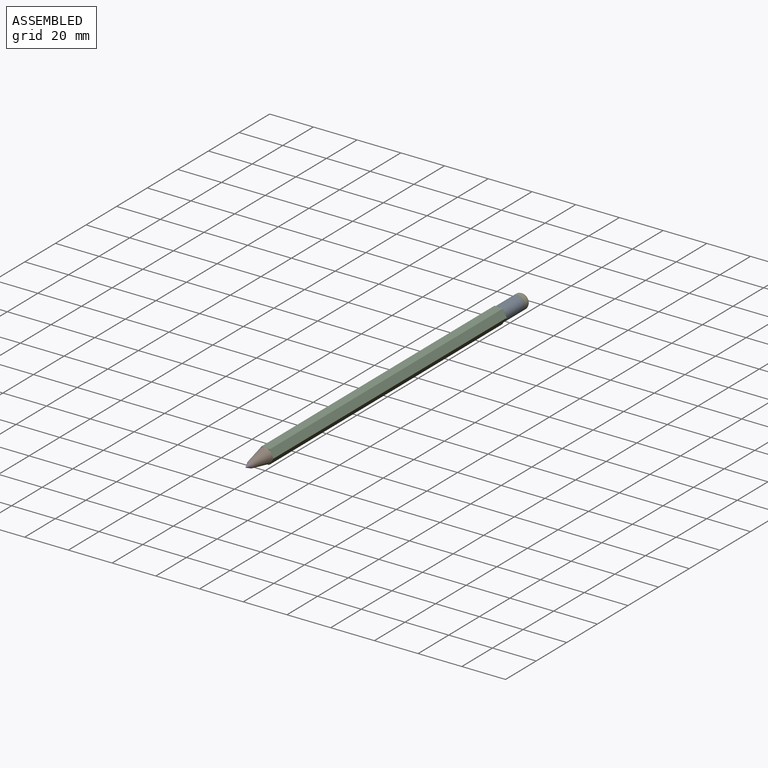
[diagram: assembled view]
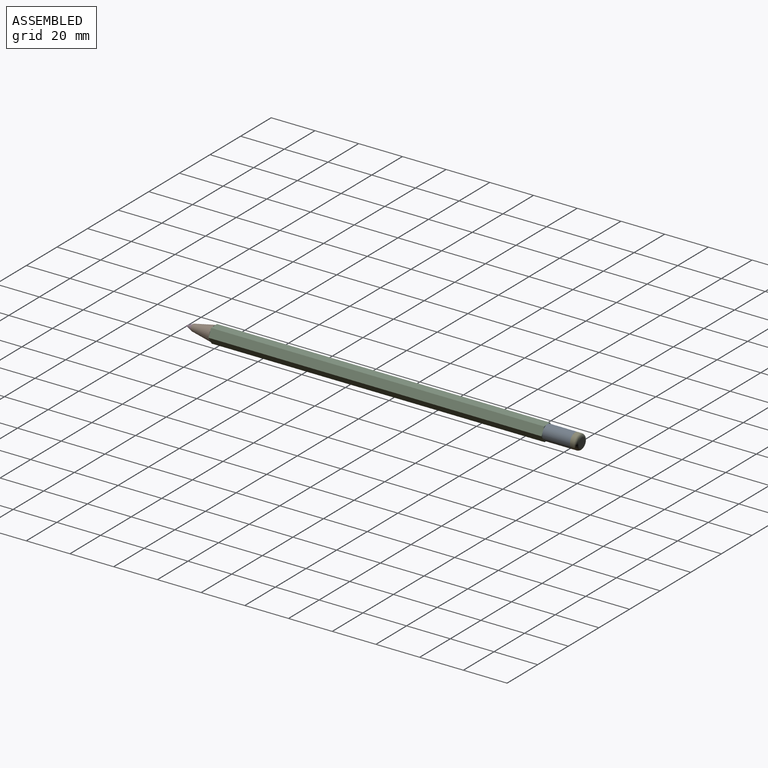
[diagram: assembled view, second angle]
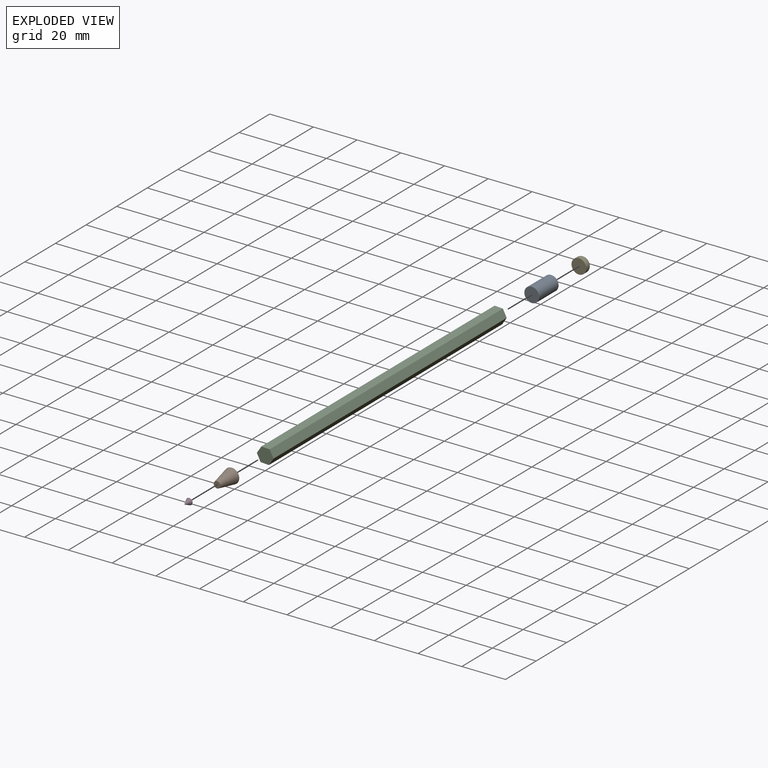
[diagram: exploded view]
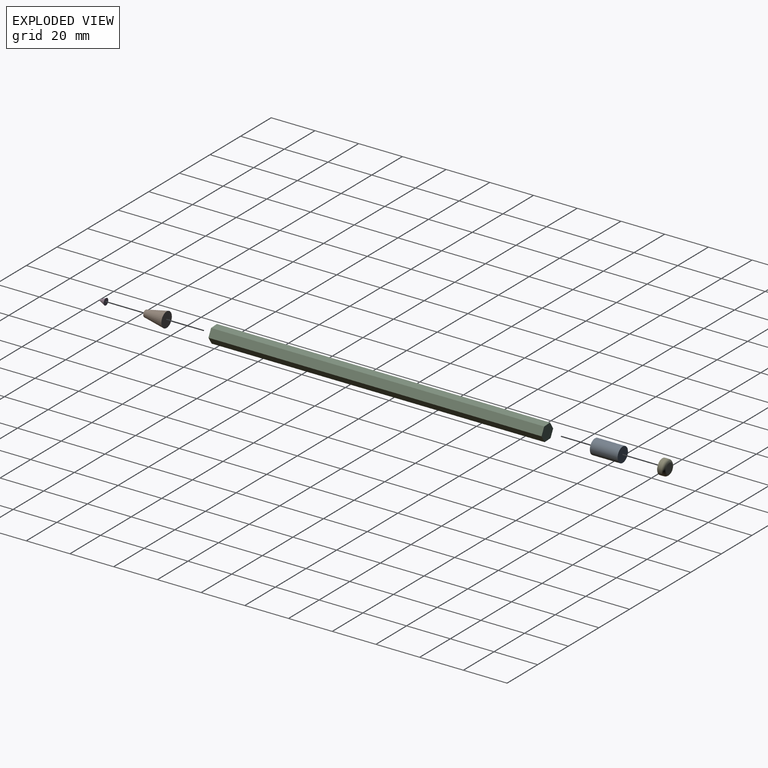
[diagram: exploded view, second angle]
ASSEMBLY  parts=5 mates=4
PART A: 3 faces, bbox 6.8x12.7x6.8 mm
  f0: cylinder r=3.39mm len=12.7mm, axis (0,1,0), area 270.6mm2, adj f1,f2
  f1: plane 6.78x6.78mm, normal (0,-1,0), area 36.1mm2, adj f0
  f2: plane 6.78x6.78mm, normal (0,1,0), area 36.1mm2, adj f0
PART B: 3 faces, bbox 6.9x9.7x6.9 mm
  f0: plane 3.02x3.02mm, normal (0,1,0), area 7.2mm2, adj f2
  f1: plane 6.86x6.86mm, normal (0,-1,0), area 36.9mm2, adj f2
  f2: cone r=1.51mm half-angle=11.2deg, axis (0,-1,0), area 152.7mm2, adj f0,f1
PART C: 8 faces, bbox 7.6x152.4x6.8 mm
  f0: plane 152.4x3.2mm, normal (0.84,0,-0.54), area 580.6mm2, adj f1,f5,f6,f7
  f1: plane 152.4x3.39mm, normal (0.89,0,0.45), area 580.6mm2, adj f0,f2,f6,f7
  f2: plane 152.4x3.81mm, normal (0.05,0,1), area 580.6mm2, adj f1,f3,f6,f7
  f3: plane 152.4x3.2mm, normal (-0.84,0,0.54), area 580.6mm2, adj f2,f4,f6,f7
  f4: plane 152.4x3.39mm, normal (-0.89,0,-0.45), area 580.6mm2, adj f3,f5,f6,f7
  f5: plane 152.4x3.81mm, normal (-0.05,0,-1), area 580.6mm2, adj f0,f4,f6,f7
  f6: plane 7.61x6.79mm, normal (0,-1,0), area 37.7mm2, adj f0,f1,f2,f3,f4,f5
  f7: plane 7.61x6.79mm, normal (0,1,0), area 37.7mm2, adj f0,f1,f2,f3,f4,f5
PART D: 2 faces, bbox 3x3.3x3 mm
  f0: plane 3.02x3.02mm, normal (0,-1,0), area 7.2mm2, adj f1
  f1: cone r=1.51mm half-angle=24.6deg, axis (0,-1,0), area 17.2mm2, adj f0
PART E: 4 faces, bbox 7.3x3.2x7.3 mm
  f0: cylinder r=3.39mm len=6.78mm, axis (0,1,0), area 40.6mm2, adj f2,f3
  f1: plane 4.24x4.24mm, normal (0,-1,0), area 14.1mm2, adj f3
  f2: plane 6.78x6.78mm, normal (0,1,0), area 36.1mm2, adj f0
  f3: torus R=2.12mm, axis (0,-1,0), area 36.7mm2, adj f0,f1
PLACE A rot(axis=(1,0,0),180deg) t=(0,152.4,0)mm
PLACE B rot(axis=(1,0,0),180deg) t=(0,-12.95,0)mm
PLACE C t=(0,152.4,0)mm
PLACE D rot(axis=(1,0,0),180deg) t=(0,-12.95,0)mm
PLACE E rot(axis=(1,0,0),180deg) t=(0,152.4,0)mm
MATE fastened D.f1 <-> B.f2  axis (0,1,0) through (0,-9.65,0)mm
MATE fastened B.f2 <-> C.f6  axis (0,1,0) through (0,0,0)mm
MATE fastened E.f0 <-> A.f0  axis (0,-1,0) through (0,165.1,0)mm
MATE fastened A.f0 <-> C.f7  axis (0,-1,0) through (0,152.4,0)mm
